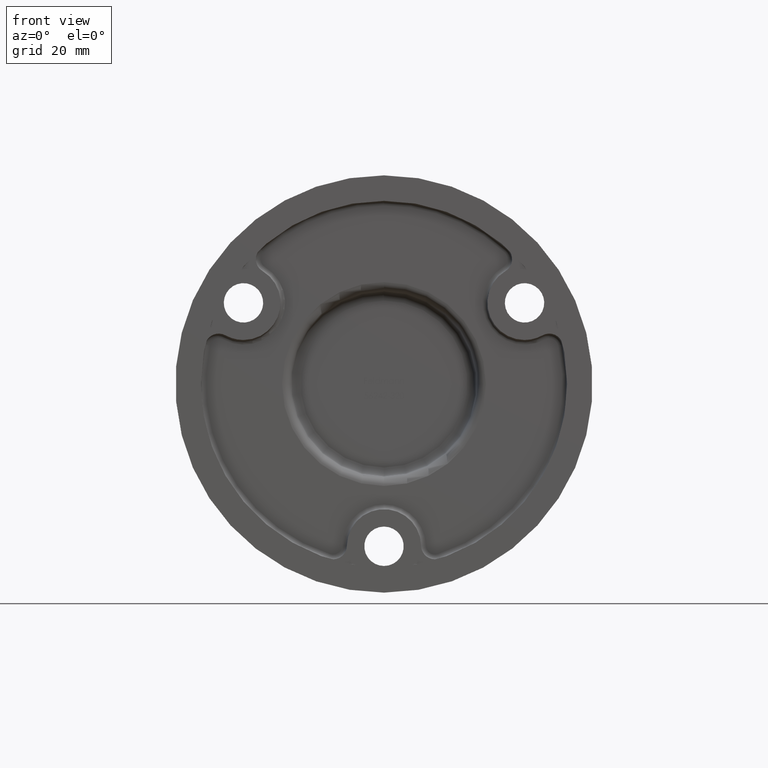
[diagram: clean part render]
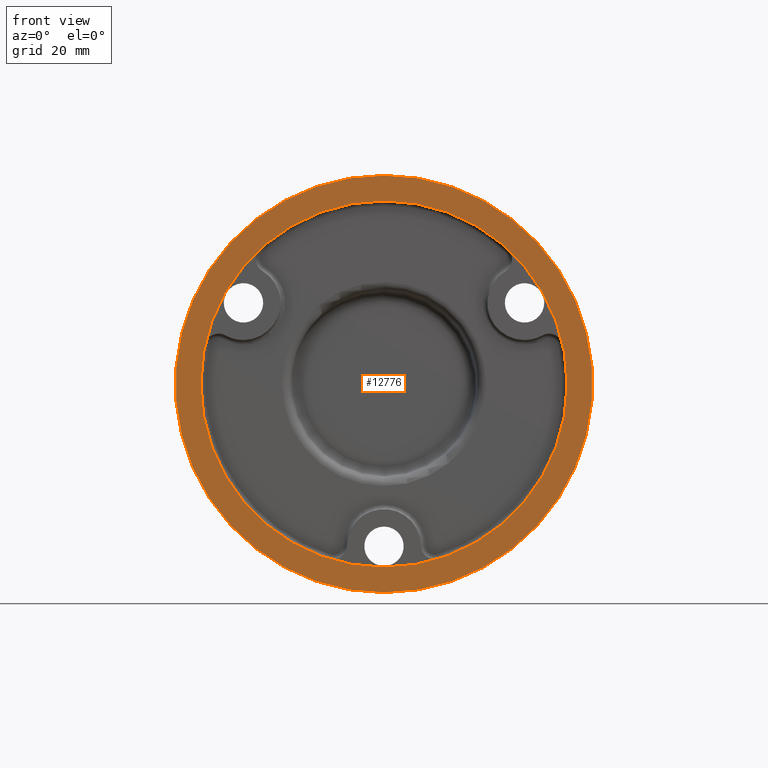
[diagram: same view with one face highlighted and labeled with its STEP entity id]
A machine part, front view. The second image highlights one B-rep face of the part: STEP entity #12776.
In plain terms, the highlighted planar face has unit normal (0, 1, 0).
Its self-contained STEP definition (entity closure, byte-faithful):
#363 = DIRECTION ( 'NONE',  ( 0.000000000000000000, -1.000000000000000000, 0.000000000000000000 ) ) ;
#1123 = CIRCLE ( 'NONE', #2945, 39.50000000000000711 ) ;
#1743 = DIRECTION ( 'NONE',  ( 0.000000000000000000, 0.000000000000000000, -1.000000000000000000 ) ) ;
#2235 = DIRECTION ( 'NONE',  ( 0.000000000000000000, 0.000000000000000000, -1.000000000000000000 ) ) ;
#2252 = DIRECTION ( 'NONE',  ( 0.000000000000000000, 1.000000000000000000, 0.000000000000000000 ) ) ;
#2945 = AXIS2_PLACEMENT_3D ( 'NONE', #15706, #363, #2235 ) ;
#3568 = CIRCLE ( 'NONE', #22883, 39.50000000000000711 ) ;
#4526 = VERTEX_POINT ( 'NONE', #23046 ) ;
#5931 = FACE_BOUND ( 'NONE', #21266, .T. ) ;
#6090 = DIRECTION ( 'NONE',  ( 0.000000000000000000, 1.000000000000000000, 0.000000000000000000 ) ) ;
#9931 = EDGE_LOOP ( 'NONE', ( #17959, #14223 ) ) ;
#11431 = AXIS2_PLACEMENT_3D ( 'NONE', #12170, #2252, #13947 ) ;
#12170 = CARTESIAN_POINT ( 'NONE',  ( 0.000000000000000000, 0.000000000000000000, 0.000000000000000000 ) ) ;
#12190 = EDGE_CURVE ( 'NONE', #16911, #17629, #3568, .T. ) ;
#12524 = CIRCLE ( 'NONE', #17747, 45.00000000000000711 ) ;
#12776 = ADVANCED_FACE ( 'NONE', ( #23816, #5931 ), #17576, .F. ) ;
#12779 = CARTESIAN_POINT ( 'NONE',  ( 0.000000000000000000, 0.000000000000000000, 0.000000000000000000 ) ) ;
#12871 = DIRECTION ( 'NONE',  ( 0.000000000000000000, 0.000000000000000000, 1.000000000000000000 ) ) ;
#13200 = CIRCLE ( 'NONE', #11431, 45.00000000000000711 ) ;
#13202 = DIRECTION ( 'NONE',  ( 0.000000000000000000, -1.000000000000000000, 0.000000000000000000 ) ) ;
#13947 = DIRECTION ( 'NONE',  ( 0.000000000000000000, 0.000000000000000000, 1.000000000000000000 ) ) ;
#13973 = CARTESIAN_POINT ( 'NONE',  ( 0.000000000000000000, 0.000000000000000000, 0.000000000000000000 ) ) ;
#14223 = ORIENTED_EDGE ( 'NONE', *, *, #24568, .F. ) ;
#14649 = ORIENTED_EDGE ( 'NONE', *, *, #12190, .F. ) ;
#15217 = CARTESIAN_POINT ( 'NONE',  ( 0.000000000000000000, 0.000000000000000000, 0.000000000000000000 ) ) ;
#15706 = CARTESIAN_POINT ( 'NONE',  ( 0.000000000000000000, 0.000000000000000000, 0.000000000000000000 ) ) ;
#15903 = EDGE_CURVE ( 'NONE', #18600, #4526, #12524, .T. ) ;
#16053 = CARTESIAN_POINT ( 'NONE',  ( 0.000000000000000000, 0.000000000000000000, -39.50000000000000711 ) ) ;
#16911 = VERTEX_POINT ( 'NONE', #16053 ) ;
#17216 = AXIS2_PLACEMENT_3D ( 'NONE', #13973, #6090, #21667 ) ;
#17566 = CARTESIAN_POINT ( 'NONE',  ( 4.837354856632047030E-15, 0.000000000000000000, 39.50000000000000711 ) ) ;
#17576 = PLANE ( 'NONE',  #17216 ) ;
#17629 = VERTEX_POINT ( 'NONE', #17566 ) ;
#17747 = AXIS2_PLACEMENT_3D ( 'NONE', #12779, #20560, #12871 ) ;
#17959 = ORIENTED_EDGE ( 'NONE', *, *, #15903, .F. ) ;
#18600 = VERTEX_POINT ( 'NONE', #20311 ) ;
#20311 = CARTESIAN_POINT ( 'NONE',  ( 0.000000000000000000, 0.000000000000000000, -45.00000000000000711 ) ) ;
#20560 = DIRECTION ( 'NONE',  ( 0.000000000000000000, 1.000000000000000000, 0.000000000000000000 ) ) ;
#21266 = EDGE_LOOP ( 'NONE', ( #14649, #21459 ) ) ;
#21459 = ORIENTED_EDGE ( 'NONE', *, *, #21975, .F. ) ;
#21667 = DIRECTION ( 'NONE',  ( 0.000000000000000000, -0.000000000000000000, 1.000000000000000000 ) ) ;
#21975 = EDGE_CURVE ( 'NONE', #17629, #16911, #1123, .T. ) ;
#22883 = AXIS2_PLACEMENT_3D ( 'NONE', #15217, #13202, #1743 ) ;
#23046 = CARTESIAN_POINT ( 'NONE',  ( 5.510910596163090344E-15, 0.000000000000000000, 45.00000000000000711 ) ) ;
#23816 = FACE_OUTER_BOUND ( 'NONE', #9931, .T. ) ;
#24568 = EDGE_CURVE ( 'NONE', #4526, #18600, #13200, .T. ) ;